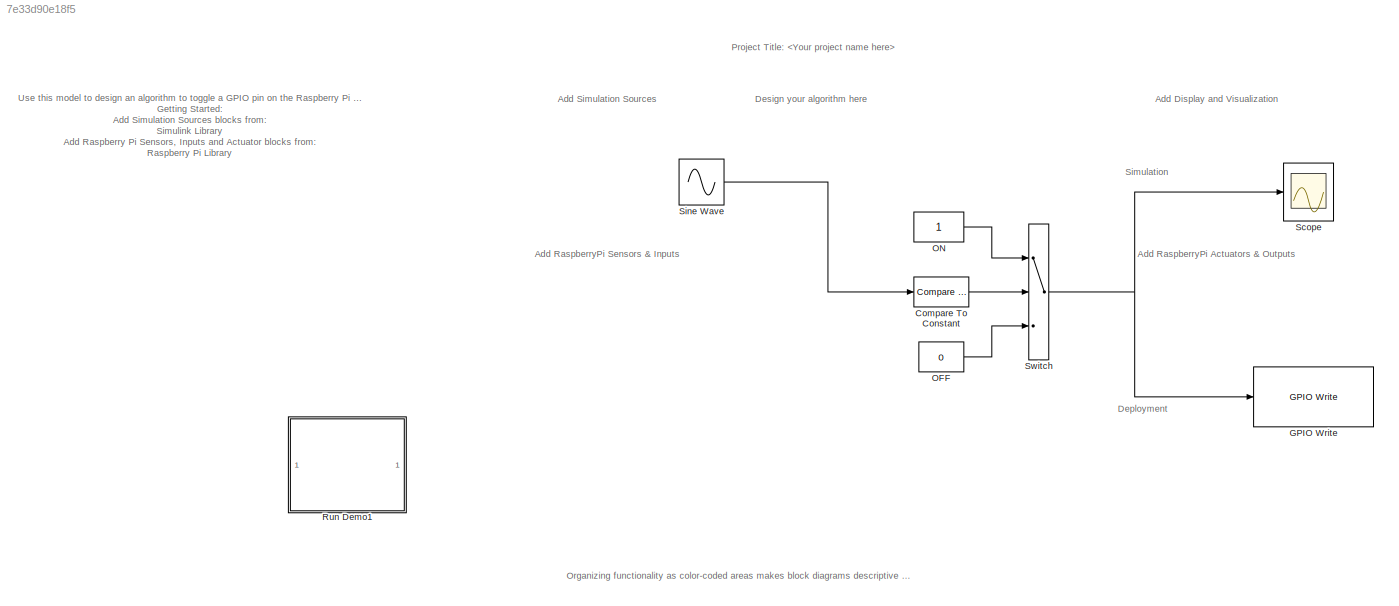
MODEL slx_7e33d90e18f5
KIND model
CONFIG AbsTol = auto
CONFIG EnableMultiTasking = on
CONFIG FixedStep = auto
CONFIG MaxStep = auto
CONFIG MinStep = auto
CONFIG RelTol = 1e-3
CONFIG SampleTimeConstraint = Unconstrained
CONFIG SolverName = ode45
CONFIG StartTime = 0.0
CONFIG StopTime = 10.0
BLOCK [Reference] Compare To Constant  REF=simulink/Logic and Bit
Operations/Compare
To Constant
  SourceBlock = simulink/Logic and Bit\nOperations/Compare\nTo Constant
  SourceType = Compare To Constant
BLOCK [Reference] GPIO Write  REF=embedlinuxBasiclib/GPIO Write
  SourceBlock = embedlinuxBasiclib/GPIO Write
  SourceType = GPIO Write
BLOCK [Constant] OFF
  SampleTime = -1
  Value = 0
BLOCK [Constant] ON
  SampleTime = -1
BLOCK [SubSystem] Run Demo1
  Description = Controls host-side RTDX processing.
  ShowPortLabels = none
  UserDataPersistent = on
BLOCK [Scope] Scope
  Floating = off
  NumInputPorts = 1
  ScopeSpecificationString = C++SS(StrPVP('SaveName','ScopeData'),StrPVP('LimitDataPoints','on'),StrPVP('DataFormat','Array'),StrPVP('Decimation','1'),StrPVP('BlockParamSampleInput','off'))
BLOCK [Sin] Sine Wave
  Amplitude = 5
  SampleTime = 0.1
  SineType = Sample based
BLOCK [Switch] Switch
  Criteria = u2 > Threshold
  InputSameDT = off
  SaturateOnIntegerOverflow = off
ANNOTATION (root): Use this model to design an algorithm to toggle a GPIO pin on the Raspberry Pi Hardware. Getting Started: Add Simulation Sources blocks from: Simulink Library Add Raspberry Pi Sensors, Inputs and Actuator blocks from: Raspberry Pi Library Configure Raspberry Pi Hardware: Open Model Configuration Parameters dialog Under the Hardware Implementation option, select the Raspberry Pi hardware from the H...<+325ch>
ANNOTATION (root): Organizing functionality as color-coded areas makes block diagrams descriptive and helps to develop increasingly complex algorithms.
ANNOTATION (root): Add Display and Visualization
ANNOTATION (root): Add RaspberryPi Actuators & Outputs
ANNOTATION (root): Add RaspberryPi Sensors & Inputs
ANNOTATION (root): Add Simulation Sources
ANNOTATION (root): Deployment
ANNOTATION (root): Design your algorithm here
ANNOTATION (root): Project Title:
ANNOTATION (root): Simulation
LINE Compare To Constant:1 -> Switch:2
LINE OFF:1 -> Switch:3
LINE ON:1 -> Switch:1
LINE Sine Wave:1 -> Compare To Constant:1
NET Switch:1 -> GPIO Write:1, Scope:1
note: NET lines group one-source signal fan-out (src -> all destinations, sorted); 1:1 wires keep LINE
